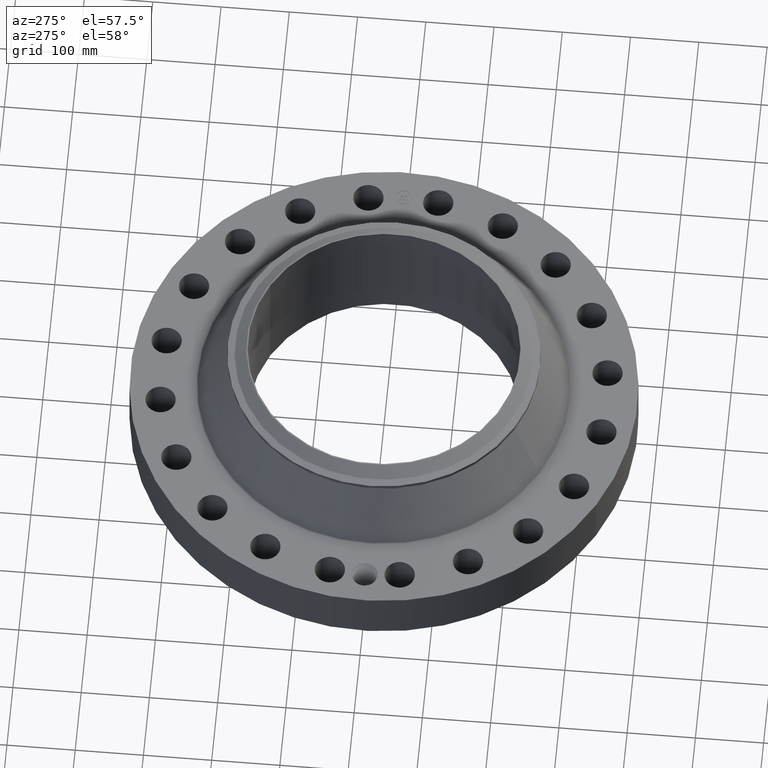
[diagram: clean part render]
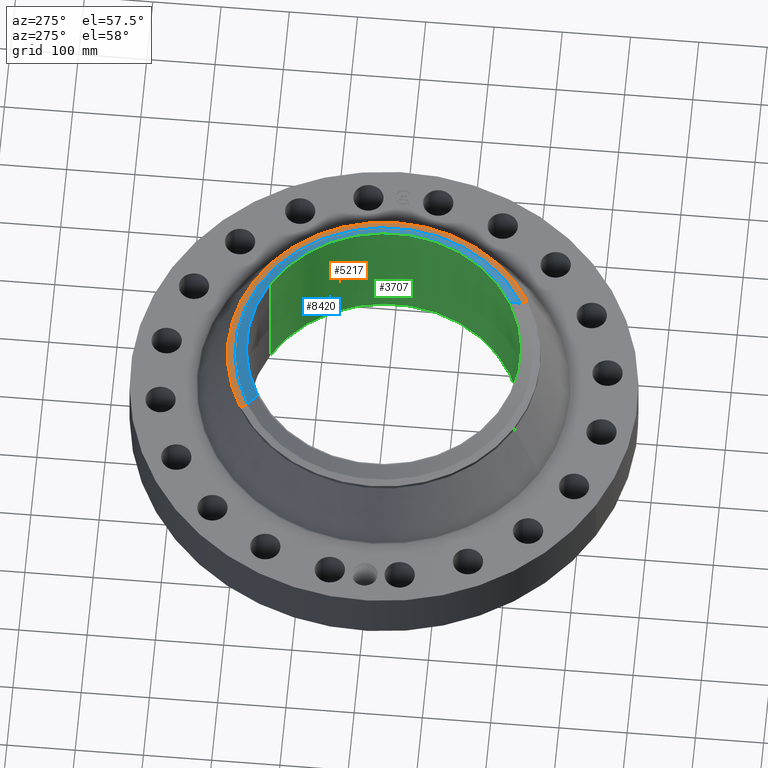
[diagram: same view with three faces highlighted in distinct colors, each labeled with its STEP entity id]
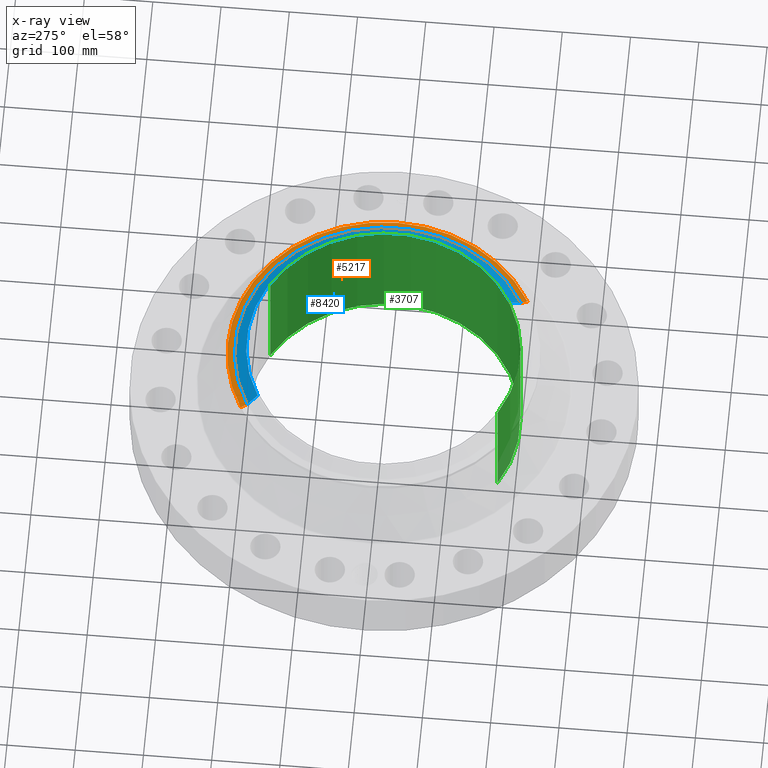
[diagram: x-ray of the same camera — body ghosted, the three highlighted faces saturated]
A machine part, auxiliary view with three faces highlighted in distinct colors.
The next image is the same camera in x-ray (body ghosted, the three faces saturated) — at least one of them is partly hidden behind the body in this view.
Their STEP definitions:

[orange] entity #5217 — the highlighted conical surface has half-angle 80 deg.
#4011=AXIS2_PLACEMENT_3D('Circle Axis2P3D',#4009,#4010,$) ;
#4038=AXIS2_PLACEMENT_3D('Circle Axis2P3D',#4036,#4037,$) ;
#5189=AXIS2_PLACEMENT_3D('Cone Axis2P3D',#5186,#5187,#5188) ;
#5200=AXIS2_PLACEMENT_3D('Circle Axis2P3D',#5198,#5199,$) ;
#4006=CARTESIAN_POINT('Vertex',(4.31482984746,7.89824305704,6.91449883859)) ;
#4009=CARTESIAN_POINT('Axis2P3D Location',(0.,0.,6.91449883859)) ;
#4013=CARTESIAN_POINT('Vertex',(4.31482984746,-7.89824305704,6.91449883859)) ;
#4033=CARTESIAN_POINT('Vertex',(-4.31482984746,7.89824305704,6.91449883859)) ;
#4036=CARTESIAN_POINT('Axis2P3D Location',(0.,0.,6.91449883859)) ;
#5186=CARTESIAN_POINT('Axis2P3D Location',(0.,0.,6.98141601925)) ;
#5191=CARTESIAN_POINT('Line Origine',(-4.22385736766,7.73171904977,6.94795742892)) ;
#5195=CARTESIAN_POINT('Vertex',(-4.13288488787,7.5651950425,6.98141601925)) ;
#5198=CARTESIAN_POINT('Axis2P3D Location',(0.,0.,6.98141601925)) ;
#5202=CARTESIAN_POINT('Vertex',(4.13288488787,-7.5651950425,6.98141601925)) ;
#5205=CARTESIAN_POINT('Line Origine',(4.22385736766,-7.73171904977,6.94795742892)) ;
#4010=DIRECTION('Axis2P3D Direction',(0.,0.,-0.0393700787402)) ;
#4037=DIRECTION('Axis2P3D Direction',(0.,0.,-0.0393700787402)) ;
#5187=DIRECTION('Axis2P3D Direction',(-0.,-0.,-0.0393700787402)) ;
#5188=DIRECTION('Axis2P3D XDirection',(0.0188750212049,-0.0345504945626,0.)) ;
#5192=DIRECTION('Vector Direction',(-0.0185882672208,0.0340255949157,-0.00683654242783)) ;
#5199=DIRECTION('Axis2P3D Direction',(0.,0.,-0.0393700787402)) ;
#5206=DIRECTION('Vector Direction',(0.0185882672208,-0.0340255949157,-0.00683654242783)) ;
#5193=VECTOR('Line Direction',#5192,0.0393700787402) ;
#5207=VECTOR('Line Direction',#5206,0.0393700787402) ;
#5211=ORIENTED_EDGE('',*,*,#5197,.F.) ;
#5212=ORIENTED_EDGE('',*,*,#5204,.F.) ;
#5213=ORIENTED_EDGE('',*,*,#5209,.T.) ;
#5214=ORIENTED_EDGE('',*,*,#4015,.T.) ;
#5215=ORIENTED_EDGE('',*,*,#4040,.F.) ;
#5217=ADVANCED_FACE('PartBody',(#5216),#5190,.T.) ;
#4012=CIRCLE('generated circle',#4011,9.00000000004) ;
#4039=CIRCLE('generated circle',#4038,9.00000000004) ;
#5201=CIRCLE('generated circle',#5200,8.62049380996) ;
#5190=CONICAL_SURFACE('Cone',#5189,8.62049380996,1.3962634016) ;
#4015=EDGE_CURVE('',#4014,#4007,#4012,.F.) ;
#4040=EDGE_CURVE('',#4034,#4007,#4039,.T.) ;
#5197=EDGE_CURVE('',#5196,#4034,#5194,.T.) ;
#5204=EDGE_CURVE('',#5203,#5196,#5201,.F.) ;
#5209=EDGE_CURVE('',#5203,#4014,#5208,.T.) ;
#5210=EDGE_LOOP('',(#5211,#5212,#5213,#5214,#5215)) ;
#5216=FACE_OUTER_BOUND('',#5210,.T.) ;
#5194=LINE('Line',#5191,#5193) ;
#5208=LINE('Line',#5205,#5207) ;
#4007=VERTEX_POINT('',#4006) ;
#4014=VERTEX_POINT('',#4013) ;
#4034=VERTEX_POINT('',#4033) ;
#5196=VERTEX_POINT('',#5195) ;
#5203=VERTEX_POINT('',#5202) ;

[blue] entity #8420 — the highlighted conical surface has half-angle 52.5 deg.
#4824=AXIS2_PLACEMENT_3D('Circle Axis2P3D',#4822,#4823,$) ;
#8381=AXIS2_PLACEMENT_3D('Cone Axis2P3D',#8378,#8379,#8380) ;
#8411=AXIS2_PLACEMENT_3D('Circle Axis2P3D',#8409,#8410,$) ;
#4822=CARTESIAN_POINT('Axis2P3D Location',(0.,0.,7.50000000003)) ;
#4826=CARTESIAN_POINT('Vertex',(3.79836396724,-6.95285860462,7.50000000003)) ;
#4828=CARTESIAN_POINT('Vertex',(-3.79836396724,6.95285860462,7.50000000003)) ;
#8378=CARTESIAN_POINT('Axis2P3D Location',(0.,0.,7.50000000003)) ;
#8383=CARTESIAN_POINT('Line Origine',(-3.95330526979,7.23647675652,7.25201437259)) ;
#8387=CARTESIAN_POINT('Vertex',(-4.10824657234,7.52009490843,7.00402874516)) ;
#8394=CARTESIAN_POINT('Vertex',(4.10824657234,-7.52009490843,7.00402874516)) ;
#8397=CARTESIAN_POINT('Line Origine',(3.95330526979,-7.23647675652,7.25201437259)) ;
#8409=CARTESIAN_POINT('Axis2P3D Location',(0.,0.,7.00402874516)) ;
#4823=DIRECTION('Axis2P3D Direction',(0.,0.,-0.0393700787402)) ;
#8379=DIRECTION('Axis2P3D Direction',(-0.,-0.,-0.0393700787402)) ;
#8380=DIRECTION('Axis2P3D XDirection',(-0.0188750212049,0.0345504945626,0.)) ;
#8384=DIRECTION('Vector Direction',(-0.014974561121,0.02741075027,-0.023966985394)) ;
#8398=DIRECTION('Vector Direction',(0.014974561121,-0.02741075027,-0.023966985394)) ;
#8410=DIRECTION('Axis2P3D Direction',(0.,0.,-0.0393700787402)) ;
#8385=VECTOR('Line Direction',#8384,0.0393700787402) ;
#8399=VECTOR('Line Direction',#8398,0.0393700787402) ;
#8415=ORIENTED_EDGE('',*,*,#4830,.F.) ;
#8416=ORIENTED_EDGE('',*,*,#8401,.T.) ;
#8417=ORIENTED_EDGE('',*,*,#8413,.T.) ;
#8418=ORIENTED_EDGE('',*,*,#8389,.F.) ;
#8420=ADVANCED_FACE('PartBody',(#8419),#8382,.T.) ;
#4825=CIRCLE('generated circle',#4824,7.92274015751) ;
#8412=CIRCLE('generated circle',#8411,8.56910248106) ;
#8382=CONICAL_SURFACE('Cone',#8381,7.92274015751,0.916297857297) ;
#4830=EDGE_CURVE('',#4827,#4829,#4825,.F.) ;
#8389=EDGE_CURVE('',#4829,#8388,#8386,.T.) ;
#8401=EDGE_CURVE('',#4827,#8395,#8400,.T.) ;
#8413=EDGE_CURVE('',#8395,#8388,#8412,.F.) ;
#8414=EDGE_LOOP('',(#8415,#8416,#8417,#8418)) ;
#8419=FACE_OUTER_BOUND('',#8414,.T.) ;
#8386=LINE('Line',#8383,#8385) ;
#8400=LINE('Line',#8397,#8399) ;
#4827=VERTEX_POINT('',#4826) ;
#4829=VERTEX_POINT('',#4828) ;
#8388=VERTEX_POINT('',#8387) ;
#8395=VERTEX_POINT('',#8394) ;

[green] entity #3707 — the highlighted cylindrical surface (partial cylindrical patch) has radius 199.238 mm, axis along (0, 0, -1).
#2907=AXIS2_PLACEMENT_3D('Circle Axis2P3D',#2905,#2906,$) ;
#3638=AXIS2_PLACEMENT_3D('Cylinder Axis2P3D',#3635,#3636,#3637) ;
#3642=AXIS2_PLACEMENT_3D('Circle Axis2P3D',#3640,#3641,$) ;
#2905=CARTESIAN_POINT('Axis2P3D Location',(0.,0.,0.)) ;
#2909=CARTESIAN_POINT('Vertex',(3.76061392483,6.8837576155,-5.53887644411E-014)) ;
#2911=CARTESIAN_POINT('Vertex',(-3.76061392483,-6.8837576155,-5.53887644411E-014)) ;
#3635=CARTESIAN_POINT('Axis2P3D Location',(0.,0.,3.75000000001)) ;
#3640=CARTESIAN_POINT('Axis2P3D Location',(0.,0.,7.50000000003)) ;
#3644=CARTESIAN_POINT('Vertex',(3.76061392483,6.8837576155,7.50000000003)) ;
#3646=CARTESIAN_POINT('Vertex',(-3.76061392483,-6.8837576155,7.50000000003)) ;
#3649=CARTESIAN_POINT('Line Origine',(3.76061392483,6.8837576155,3.75000000001)) ;
#3654=CARTESIAN_POINT('Line Origine',(-3.76061392483,-6.8837576155,3.75000000001)) ;
#3666=CARTESIAN_POINT('Control Point',(0.219395640473,-7.84093116622,0.820143615352)) ;
#3667=CARTESIAN_POINT('Control Point',(0.194443281264,-7.84162935356,0.774468628192)) ;
#3668=CARTESIAN_POINT('Control Point',(0.157606371577,-7.84256074456,0.735289851241)) ;
#3669=CARTESIAN_POINT('Control Point',(0.111110848195,-7.84346651512,0.706758101233)) ;
#3670=CARTESIAN_POINT('Control Point',(0.0336769110629,-7.8441871941,0.68411793338)) ;
#3671=CARTESIAN_POINT('Control Point',(-0.0446672311194,-7.84393819326,0.691943100701)) ;
#3672=CARTESIAN_POINT('Control Point',(-0.0702959034533,-7.84374488933,0.697955030085)) ;
#3673=CARTESIAN_POINT('Control Point',(-0.143950689508,-7.84289063035,0.72578459758)) ;
#3674=CARTESIAN_POINT('Control Point',(-0.203237376576,-7.84149615471,0.780494789339)) ;
#3675=CARTESIAN_POINT('Control Point',(-0.232204167361,-7.840581429,0.826730758246)) ;
#3676=CARTESIAN_POINT('Control Point',(-0.255839574974,-7.83982932625,0.904878740007)) ;
#3677=CARTESIAN_POINT('Control Point',(-0.248284438464,-7.84006954017,0.984246463594)) ;
#3678=CARTESIAN_POINT('Control Point',(-0.24205062251,-7.84027062564,1.01081160866)) ;
#3679=CARTESIAN_POINT('Control Point',(-0.23231649398,-7.84056963022,1.03620492096)) ;
#3680=CARTESIAN_POINT('Control Point',(-0.219395640473,-7.84093116622,1.05985638466)) ;
#3681=CARTESIAN_POINT('Vertex',(0.219395640473,-7.84093116622,0.820143615352)) ;
#3683=CARTESIAN_POINT('Vertex',(-0.219395640473,-7.84093116622,1.05985638466)) ;
#3687=CARTESIAN_POINT('Control Point',(-0.219395640473,-7.84093116622,1.05985638466)) ;
#3688=CARTESIAN_POINT('Control Point',(-0.194443281265,-7.84162935356,1.10553137181)) ;
#3689=CARTESIAN_POINT('Control Point',(-0.157606371578,-7.84256074456,1.14471014877)) ;
#3690=CARTESIAN_POINT('Control Point',(-0.111110848194,-7.84346651512,1.17324189878)) ;
#3691=CARTESIAN_POINT('Control Point',(-0.0336769110553,-7.8441871941,1.19588206663)) ;
#3692=CARTESIAN_POINT('Control Point',(0.044667231133,-7.84393819326,1.18805689931)) ;
#3693=CARTESIAN_POINT('Control Point',(0.0702959034408,-7.84374488933,1.18204496993)) ;
#3694=CARTESIAN_POINT('Control Point',(0.143950689474,-7.84289063035,1.15421540244)) ;
#3695=CARTESIAN_POINT('Control Point',(0.203237376528,-7.84149615471,1.09950521071)) ;
#3696=CARTESIAN_POINT('Control Point',(0.23220416738,-7.840581429,1.0532692417)) ;
#3697=CARTESIAN_POINT('Control Point',(0.255839574971,-7.83982932625,0.975121259969)) ;
#3698=CARTESIAN_POINT('Control Point',(0.248284438464,-7.84006954017,0.895753536413)) ;
#3699=CARTESIAN_POINT('Control Point',(0.24205062251,-7.84027062564,0.869188391348)) ;
#3700=CARTESIAN_POINT('Control Point',(0.23231649398,-7.84056963022,0.84379507905)) ;
#3701=CARTESIAN_POINT('Control Point',(0.219395640473,-7.84093116622,0.820143615352)) ;
#2906=DIRECTION('Axis2P3D Direction',(0.,0.,-0.0393700787402)) ;
#3636=DIRECTION('Axis2P3D Direction',(0.,0.,-0.0393700787402)) ;
#3637=DIRECTION('Axis2P3D XDirection',(-0.0188750212049,-0.0345504945626,0.)) ;
#3641=DIRECTION('Axis2P3D Direction',(0.,0.,-0.0393700787402)) ;
#3650=DIRECTION('Vector Direction',(0.,0.,-0.0393700787402)) ;
#3655=DIRECTION('Vector Direction',(0.,0.,-0.0393700787402)) ;
#3651=VECTOR('Line Direction',#3650,0.0393700787402) ;
#3656=VECTOR('Line Direction',#3655,0.0393700787402) ;
#3660=ORIENTED_EDGE('',*,*,#3648,.F.) ;
#3661=ORIENTED_EDGE('',*,*,#3653,.T.) ;
#3662=ORIENTED_EDGE('',*,*,#2913,.T.) ;
#3663=ORIENTED_EDGE('',*,*,#3658,.F.) ;
#3704=ORIENTED_EDGE('',*,*,#3685,.F.) ;
#3705=ORIENTED_EDGE('',*,*,#3702,.F.) ;
#3706=FACE_BOUND('',#3703,.T.) ;
#3707=ADVANCED_FACE('PartBody',(#3664,#3706),#3639,.F.) ;
#3665=B_SPLINE_CURVE_WITH_KNOTS('',5,(#3666,#3667,#3668,#3669,#3670,#3671,#3672,#3673,#3674,#3675,#3676,#3677,#3678,#3679,#3680),.UNSPECIFIED.,.F.,.U.,(6,3,3,3,6),(0.,9.34863579683,14.0227685087,23.372798434,28.2137175875),.UNSPECIFIED.) ;
#3686=B_SPLINE_CURVE_WITH_KNOTS('',5,(#3687,#3688,#3689,#3690,#3691,#3692,#3693,#3694,#3695,#3696,#3697,#3698,#3699,#3700,#3701),.UNSPECIFIED.,.F.,.U.,(6,3,3,3,6),(0.,9.34863579669,14.0227685098,23.3727984295,28.2137175829),.UNSPECIFIED.) ;
#2908=CIRCLE('generated circle',#2907,7.84400000003) ;
#3643=CIRCLE('generated circle',#3642,7.84400000003) ;
#3639=CYLINDRICAL_SURFACE('generated cylinder',#3638,7.84400000003) ;
#2913=EDGE_CURVE('',#2910,#2912,#2908,.T.) ;
#3648=EDGE_CURVE('',#3645,#3647,#3643,.T.) ;
#3653=EDGE_CURVE('',#3645,#2910,#3652,.T.) ;
#3658=EDGE_CURVE('',#3647,#2912,#3657,.T.) ;
#3685=EDGE_CURVE('',#3682,#3684,#3665,.T.) ;
#3702=EDGE_CURVE('',#3684,#3682,#3686,.T.) ;
#3659=EDGE_LOOP('',(#3660,#3661,#3662,#3663)) ;
#3703=EDGE_LOOP('',(#3704,#3705)) ;
#3664=FACE_OUTER_BOUND('',#3659,.T.) ;
#3652=LINE('Line',#3649,#3651) ;
#3657=LINE('Line',#3654,#3656) ;
#2910=VERTEX_POINT('',#2909) ;
#2912=VERTEX_POINT('',#2911) ;
#3645=VERTEX_POINT('',#3644) ;
#3647=VERTEX_POINT('',#3646) ;
#3682=VERTEX_POINT('',#3681) ;
#3684=VERTEX_POINT('',#3683) ;